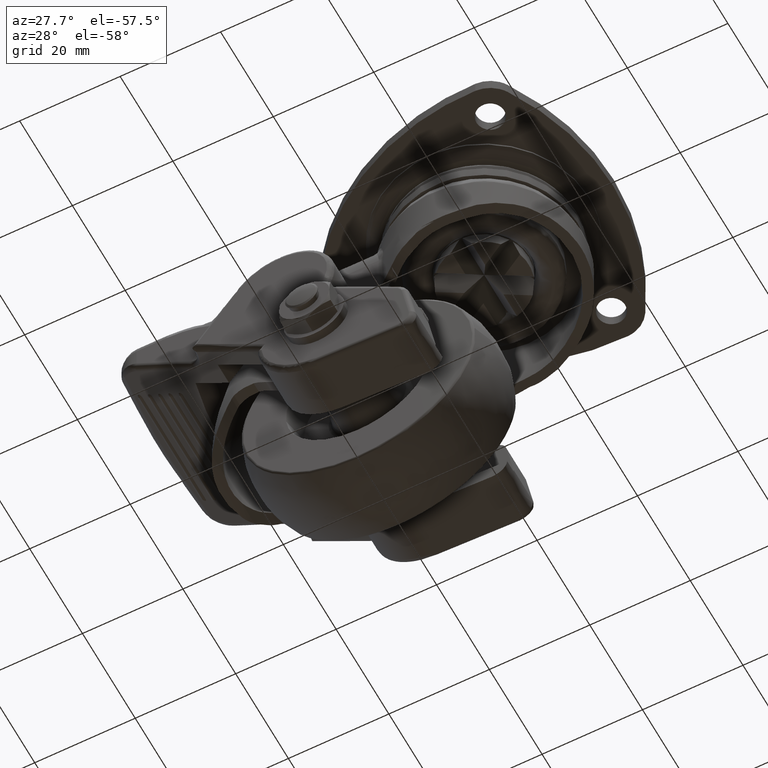
[diagram: clean part render]
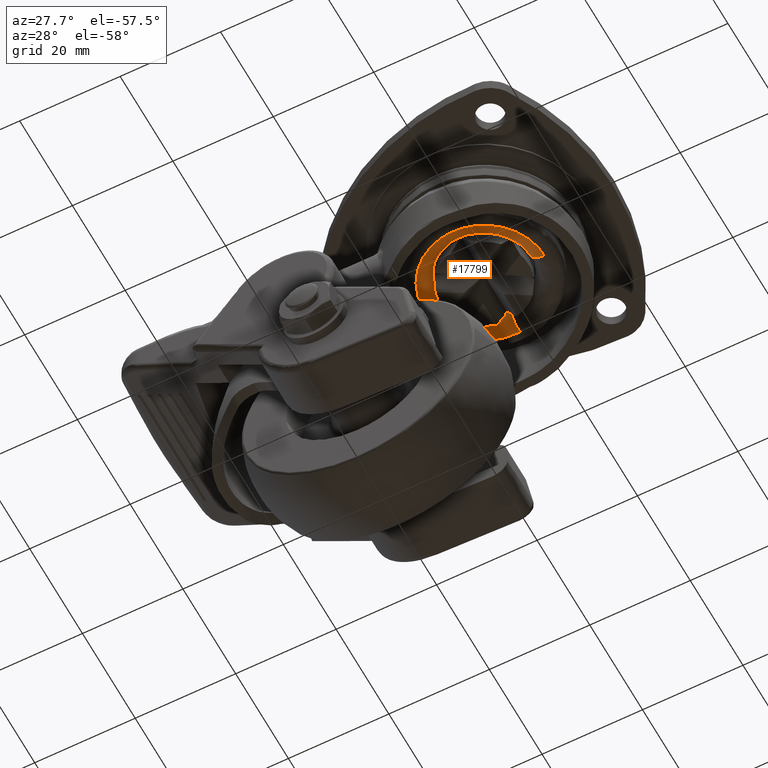
[diagram: same view with one face highlighted and labeled with its STEP entity id]
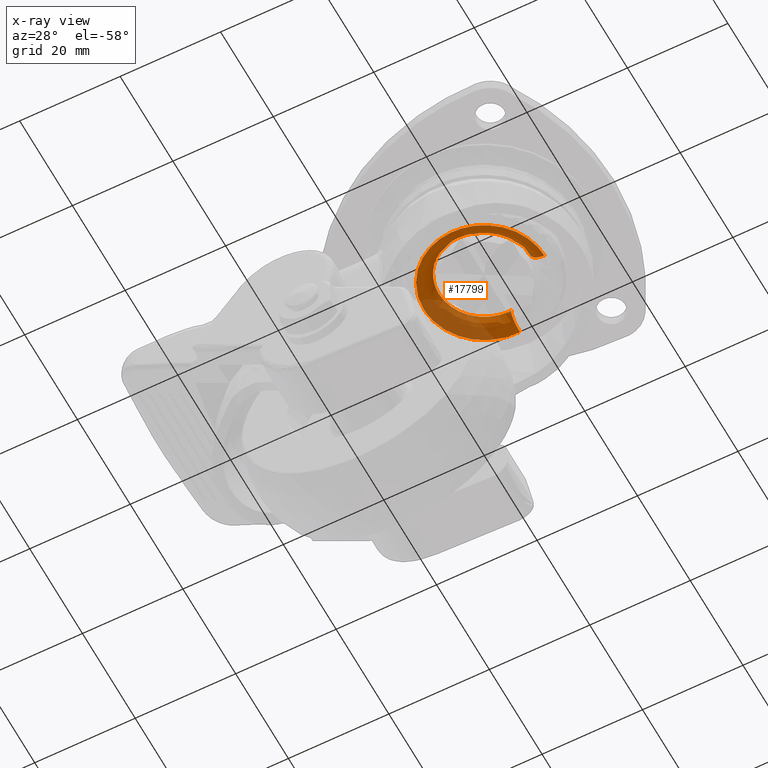
[diagram: x-ray of the same camera — body ghosted, the highlighted face saturated]
A machine part, auxiliary view. The second image highlights one B-rep face of the part: STEP entity #17799.
The next image is the same camera in x-ray: the body ghosted, the highlighted face saturated — about 36% of this face is hidden behind the body in this view.
In plain terms, the highlighted face is a freeform B-spline surface patch.
Its self-contained STEP definition (entity closure, byte-faithful):
#15280=CARTESIAN_POINT('',(0.709592456981878,-9.016227036429523,-12.260379159229410));
#15281=VERTEX_POINT('',#15280);
#15282=CARTESIAN_POINT('',(-8.409793307934962,-3.327348485695673,-12.260379159228300));
#15283=VERTEX_POINT('',#15282);
#15284=CARTESIAN_POINT('',(0.709592456981878,-9.016227036429523,-12.260379159229410));
#15285=CARTESIAN_POINT('',(0.355343931915262,-9.044106999999999,-12.260379159228300));
#15286=CARTESIAN_POINT('',(0.0,-9.044106999999999,-12.260379159228300));
#15287=CARTESIAN_POINT('',(-6.147948445725750,-9.044106999999997,-12.260379159228302));
#15288=CARTESIAN_POINT('',(-8.409793307934962,-3.327348485695672,-12.260379159228298));
#15296=(BOUNDED_CURVE()B_SPLINE_CURVE(2,(#15284,#15285,#15286,#15287,#15288),.UNSPECIFIED.,.F.,.U.)B_SPLINE_CURVE_WITH_KNOTS((3,2,3),(0.236331300629116,0.250000000000000,0.437532549938694),.UNSPECIFIED.)CURVE()GEOMETRIC_REPRESENTATION_ITEM()RATIONAL_B_SPLINE_CURVE((0.969723356164197,0.983986122577074,1.0,0.780291951264646,0.890203187500457))REPRESENTATION_ITEM(''));
#15297=EDGE_CURVE('',#15281,#15283,#15296,.T.);
#15357=CARTESIAN_POINT('',(-9.044106999999999,0.0,-12.260379159228300));
#15358=VERTEX_POINT('',#15357);
#15359=CARTESIAN_POINT('',(-8.409793307934962,-3.327348485695673,-12.260379159228304));
#15360=CARTESIAN_POINT('',(-9.044106999999999,-1.724135877952634,-12.260379159228306));
#15361=CARTESIAN_POINT('',(-9.044106999999999,0.0,-12.260379159228300));
#15369=(BOUNDED_CURVE()B_SPLINE_CURVE(2,(#15359,#15360,#15361),.UNSPECIFIED.,.F.,.U.)B_SPLINE_CURVE_WITH_KNOTS((3,3),(0.437532549938694,0.500000000000000),.UNSPECIFIED.)CURVE()GEOMETRIC_REPRESENTATION_ITEM()RATIONAL_B_SPLINE_CURVE((0.890203187500458,0.926814829921902,1.0))REPRESENTATION_ITEM(''));
#15370=EDGE_CURVE('',#15283,#15358,#15369,.T.);
#15372=CARTESIAN_POINT('',(0.630674988849290,9.022090693729968,-12.260379159575310));
#15373=VERTEX_POINT('',#15372);
#15374=CARTESIAN_POINT('',(-9.044106999999999,0.0,-12.260379159228300));
#15375=CARTESIAN_POINT('',(-9.044106999999999,9.044106999999999,-12.260379159228300));
#15376=CARTESIAN_POINT('',(0.0,9.044106999999999,-12.260379159228300));
#15377=CARTESIAN_POINT('',(0.315721779389887,9.044106999999999,-12.260379159228304));
#15378=CARTESIAN_POINT('',(0.630674988849290,9.022090693729968,-12.260379159575312));
#15386=(BOUNDED_CURVE()B_SPLINE_CURVE(2,(#15374,#15375,#15376,#15377,#15378),.UNSPECIFIED.,.F.,.U.)B_SPLINE_CURVE_WITH_KNOTS((3,2,3),(0.500000000000000,0.750000000000000,0.762166313470320),.UNSPECIFIED.)CURVE()GEOMETRIC_REPRESENTATION_ITEM()RATIONAL_B_SPLINE_CURVE((1.0,0.707106781186548,1.0,0.985746277146338,0.972879876375530))REPRESENTATION_ITEM(''));
#15387=EDGE_CURVE('',#15358,#15373,#15386,.T.);
#15404=CARTESIAN_POINT('',(9.043392915330731,-0.113648609296019,-12.260379159584749));
#15405=VERTEX_POINT('',#15404);
#15419=CARTESIAN_POINT('',(9.043392915330731,-0.113648609296019,-12.260379159584746));
#15420=CARTESIAN_POINT('',(8.939653842731081,-8.368507157921505,-12.260379159255264));
#15421=CARTESIAN_POINT('',(0.709592456981878,-9.016227036429523,-12.260379159229409));
#15429=(BOUNDED_CURVE()B_SPLINE_CURVE(2,(#15419,#15420,#15421),.UNSPECIFIED.,.F.,.U.)B_SPLINE_CURVE_WITH_KNOTS((3,3),(0.002215704079233,0.236331300629116),.UNSPECIFIED.)CURVE()GEOMETRIC_REPRESENTATION_ITEM()RATIONAL_B_SPLINE_CURVE((0.994854295641800,0.725432661300050,0.969723356164197))REPRESENTATION_ITEM(''));
#15430=EDGE_CURVE('',#15405,#15281,#15429,.T.);
#17696=CARTESIAN_POINT('',(0.631180888352879,9.029334980363482,-12.051767456431843));
#17697=CARTESIAN_POINT('',(0.372765449845463,9.047399088782973,-12.051767456431843));
#17698=CARTESIAN_POINT('',(0.113739862969480,9.050654271654018,-12.051767456431833));
#17699=CARTESIAN_POINT('',(-8.936914408684540,9.164394134623500,-12.051767456431834));
#17700=CARTESIAN_POINT('',(-9.050654271654018,0.113739862969480,-12.051767456431833));
#17701=CARTESIAN_POINT('',(-9.164394134623503,-8.936914408684540,-12.051767456431834));
#17702=CARTESIAN_POINT('',(-0.113739862969481,-9.050654271654018,-12.051767456431833));
#17703=CARTESIAN_POINT('',(8.936914408684537,-9.164394134623503,-12.051767456431834));
#17704=CARTESIAN_POINT('',(9.050654271654018,-0.113739862969481,-12.051767456431833));
#17705=CARTESIAN_POINT('',(0.614453719163329,8.790045076830756,-15.492991245580185));
#17706=CARTESIAN_POINT('',(0.362886648280581,8.807630461316482,-15.492991245580185));
#17707=CARTESIAN_POINT('',(0.110725598807503,8.810799377325475,-15.492991245580185));
#17708=CARTESIAN_POINT('',(-8.700073778517972,8.921524976132982,-15.492991245580185));
#17709=CARTESIAN_POINT('',(-8.810799377325475,0.110725598807504,-15.492991245580185));
#17710=CARTESIAN_POINT('',(-8.921524976132982,-8.700073778517972,-15.492991245580185));
#17711=CARTESIAN_POINT('',(-0.110725598807504,-8.810799377325475,-15.492991245580185));
#17712=CARTESIAN_POINT('',(8.700073778517972,-8.921524976132982,-15.492991245580185));
#17713=CARTESIAN_POINT('',(8.810799377325475,-0.110725598807505,-15.492991245580185));
#17714=CARTESIAN_POINT('',(0.854421252979380,12.222891804638273,-15.253117217770182));
#17715=CARTESIAN_POINT('',(0.504607678403464,12.247344950217531,-15.253117217770177));
#17716=CARTESIAN_POINT('',(0.153968154019508,12.251751448384187,-15.253117217770180));
#17717=CARTESIAN_POINT('',(-12.097783294364687,12.405719602403702,-15.253117217770178));
#17718=CARTESIAN_POINT('',(-12.251751448384187,0.153968154019508,-15.253117217770180));
#17719=CARTESIAN_POINT('',(-12.405719602403702,-12.097783294364683,-15.253117217770178));
#17720=CARTESIAN_POINT('',(-0.153968154019509,-12.251751448384187,-15.253117217770180));
#17721=CARTESIAN_POINT('',(12.097783294364683,-12.405719602403705,-15.253117217770178));
#17722=CARTESIAN_POINT('',(12.251751448384187,-0.153968154019510,-15.253117217770180));
#17730=(BOUNDED_SURFACE()B_SPLINE_SURFACE(2,2,((#17696,#17705,#17714),(#17697,#17706,#17715),(#17698,#17707,#17716),(#17699,#17708,#17717),(#17700,#17709,#17718),(#17701,#17710,#17719),(#17702,#17711,#17720),(#17703,#17712,#17721),(#17704,#17713,#17722)),.UNSPECIFIED.,.F.,.F.,.U.)B_SPLINE_SURFACE_WITH_KNOTS((3,2,2,2,3),(3,3),(0.0,0.812037998786540,21.113007328963079,41.413976659139621,61.714945989316163),(0.0,5.467122848107707),.UNSPECIFIED.)GEOMETRIC_REPRESENTATION_ITEM()RATIONAL_B_SPLINE_SURFACE(((0.889999350795734,0.584039704006783,0.889999373660794),(0.899812922380346,0.590479613697056,0.899812945497528),(0.910479847131206,0.597479514953821,0.910479870522433),(0.643806474040167,0.422481816643896,0.643806490580262),(0.910479847131206,0.597479514953821,0.910479870522433),(0.643806474040167,0.422481816643896,0.643806490580262),(0.910479847131206,0.597479514953821,0.910479870522433),(0.643806474040167,0.422481816643896,0.643806490580262),(0.910479847131206,0.597479514953821,0.910479870522433)))REPRESENTATION_ITEM('')SURFACE());
#17731=ORIENTED_EDGE('',*,*,#15387,.F.);
#17732=ORIENTED_EDGE('',*,*,#15370,.F.);
#17733=ORIENTED_EDGE('',*,*,#15297,.F.);
#17734=ORIENTED_EDGE('',*,*,#15430,.F.);
#17735=CARTESIAN_POINT('',(12.043156047797121,-0.151346729036417,-15.260379159228300));
#17736=VERTEX_POINT('',#17735);
#17737=CARTESIAN_POINT('',(9.043392915330731,-0.113648609296019,-12.260379159584746));
#17738=CARTESIAN_POINT('',(9.043392916043876,-0.113648609280267,-15.260379158940477));
#17739=CARTESIAN_POINT('',(12.043156047797128,-0.151346729036417,-15.260379159228298));
#17747=(BOUNDED_CURVE()B_SPLINE_CURVE(2,(#17737,#17738,#17739),.UNSPECIFIED.,.F.,.U.)B_SPLINE_CURVE_WITH_KNOTS((3,3),(-1.725134643038125,-0.274865356816571),.UNSPECIFIED.)CURVE()GEOMETRIC_REPRESENTATION_ITEM()RATIONAL_B_SPLINE_CURVE((0.883342149566112,0.624617224188606,0.883342149617956))REPRESENTATION_ITEM(''));
#17748=EDGE_CURVE('',#15405,#17736,#17747,.T.);
#17749=ORIENTED_EDGE('',*,*,#17748,.T.);
#17750=CARTESIAN_POINT('',(-12.044107000000000,0.0,-15.260379159228300));
#17751=VERTEX_POINT('',#17750);
#17752=CARTESIAN_POINT('',(-12.044107000000000,0.0,-15.260379159228300));
#17753=CARTESIAN_POINT('',(-12.044107000000000,-12.044107000000000,-15.260379159228304));
#17754=CARTESIAN_POINT('',(0.0,-12.044107000000000,-15.260379159228300));
#17755=CARTESIAN_POINT('',(11.893699347349376,-12.044107000000002,-15.260379159228302));
#17756=CARTESIAN_POINT('',(12.043156047797126,-0.151346729036417,-15.260379159228302));
#17764=(BOUNDED_CURVE()B_SPLINE_CURVE(2,(#17752,#17753,#17754,#17755,#17756),.UNSPECIFIED.,.F.,.U.)B_SPLINE_CURVE_WITH_KNOTS((3,2,3),(0.500000000000000,0.750000000000000,0.997784295918315),.UNSPECIFIED.)CURVE()GEOMETRIC_REPRESENTATION_ITEM()RATIONAL_B_SPLINE_CURVE((1.0,0.707106781186548,1.0,0.709702639988238,0.994854295636157))REPRESENTATION_ITEM(''));
#17765=EDGE_CURVE('',#17751,#17736,#17764,.T.);
#17766=ORIENTED_EDGE('',*,*,#17765,.F.);
#17767=CARTESIAN_POINT('',(0.839874743766094,12.014787713923880,-15.260379159228300));
#17768=VERTEX_POINT('',#17767);
#17769=CARTESIAN_POINT('',(0.839874743766094,12.014787713923877,-15.260379159228297));
#17770=CARTESIAN_POINT('',(0.420449127296945,12.044107000000002,-15.260379159228300));
#17771=CARTESIAN_POINT('',(0.0,12.044107000000000,-15.260379159228300));
#17772=CARTESIAN_POINT('',(-12.044107000000000,12.044107000000000,-15.260379159228304));
#17773=CARTESIAN_POINT('',(-12.044107000000000,0.0,-15.260379159228300));
#17781=(BOUNDED_CURVE()B_SPLINE_CURVE(2,(#17769,#17770,#17771,#17772,#17773),.UNSPECIFIED.,.F.,.U.)B_SPLINE_CURVE_WITH_KNOTS((3,2,3),(0.237833686522968,0.250000000000000,0.500000000000000),.UNSPECIFIED.)CURVE()GEOMETRIC_REPRESENTATION_ITEM()RATIONAL_B_SPLINE_CURVE((0.972879876361334,0.985746277138475,1.0,0.707106781186548,1.0))REPRESENTATION_ITEM(''));
#17782=EDGE_CURVE('',#17768,#17751,#17781,.T.);
#17783=ORIENTED_EDGE('',*,*,#17782,.F.);
#17784=CARTESIAN_POINT('',(0.630674988849290,9.022090693729968,-12.260379159575315));
#17785=CARTESIAN_POINT('',(0.630674988754614,9.022090694432308,-15.260379156606545));
#17786=CARTESIAN_POINT('',(0.839874743766094,12.014787713923873,-15.260379159228302));
#17794=(BOUNDED_CURVE()B_SPLINE_CURVE(2,(#17784,#17785,#17786),.UNSPECIFIED.,.F.,.U.)B_SPLINE_CURVE_WITH_KNOTS((3,3),(-1.725134643044574,-0.274865357614384),.UNSPECIFIED.)CURVE()GEOMETRIC_REPRESENTATION_ITEM()RATIONAL_B_SPLINE_CURVE((0.863472075289961,0.610566960058914,0.863472075060136))REPRESENTATION_ITEM(''));
#17795=EDGE_CURVE('',#15373,#17768,#17794,.T.);
#17796=ORIENTED_EDGE('',*,*,#17795,.F.);
#17797=EDGE_LOOP('',(#17731,#17732,#17733,#17734,#17749,#17766,#17783,#17796));
#17798=FACE_OUTER_BOUND('',#17797,.T.);
#17799=ADVANCED_FACE('',(#17798),#17730,.T.);